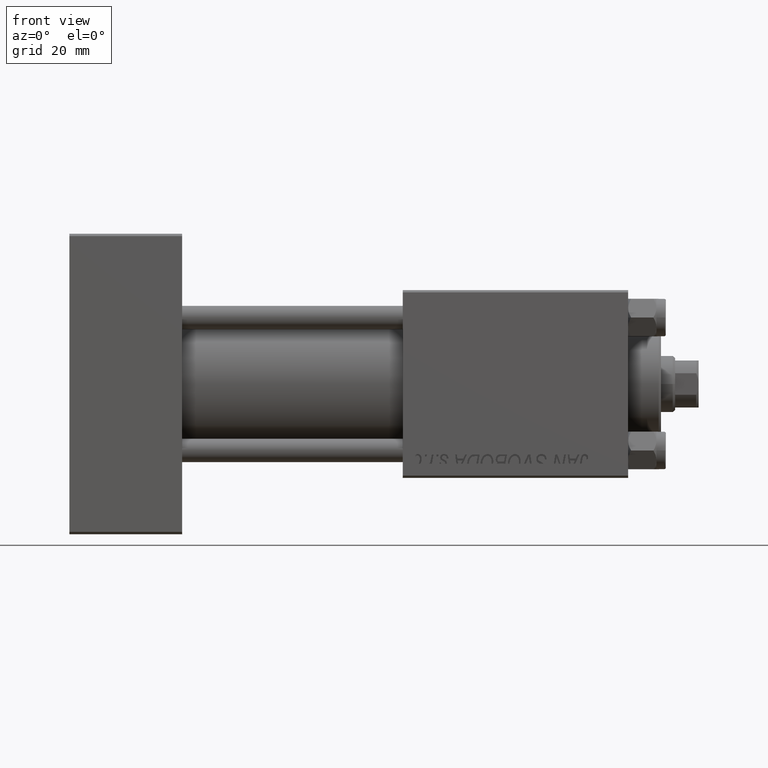
[diagram: clean part render]
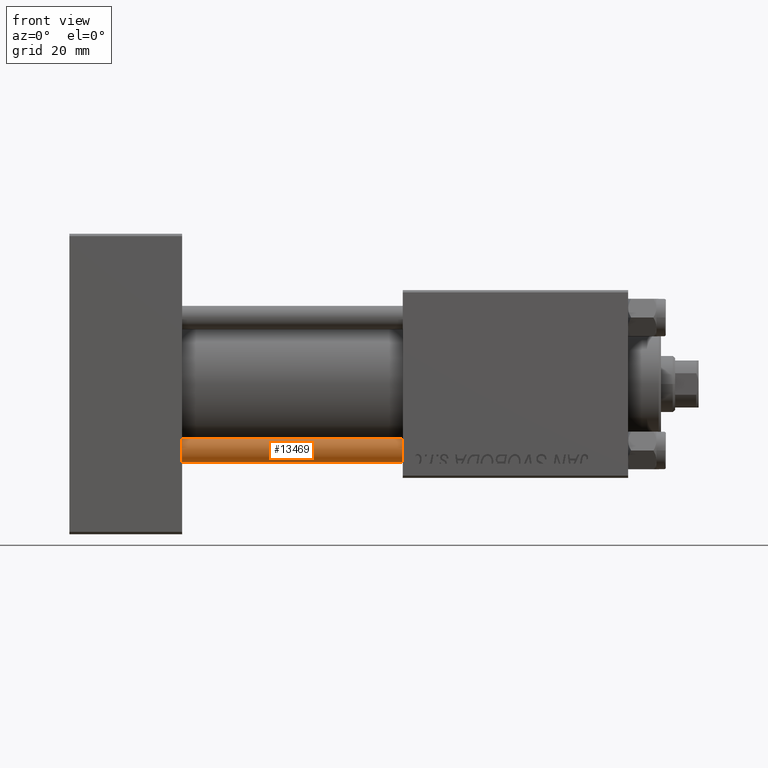
[diagram: same view with one face highlighted and labeled with its STEP entity id]
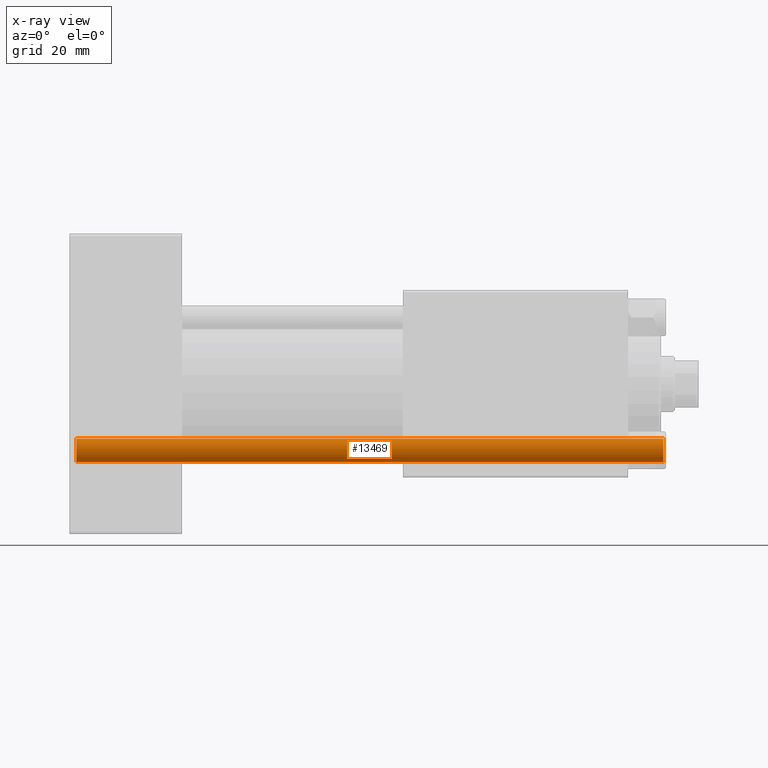
[diagram: x-ray of the same camera — body ghosted, the highlighted face saturated]
A machine part, front view. The second image highlights one B-rep face of the part: STEP entity #13469.
The next image is the same camera in x-ray: the body ghosted, the highlighted face saturated — about 0% of this face is hidden behind the body in this view.
In plain terms, the highlighted cylindrical surface (edge-blend (fillet) strip) has radius 2.5 mm, axis along (1, -0, -0).
Its self-contained STEP definition (entity closure, byte-faithful):
#584 = CARTESIAN_POINT ( 'NONE',  ( 0.000000000000000000, 0.000000000000000000, 125.5000000000000568 ) ) ;
#4180 = AXIS2_PLACEMENT_3D ( 'NONE', #48426, #19992, #20258 ) ;
#4964 = CIRCLE ( 'NONE', #51613, 2.500000000000000000 ) ;
#6126 = AXIS2_PLACEMENT_3D ( 'NONE', #45739, #38410, #18830 ) ;
#7799 = CIRCLE ( 'NONE', #6126, 2.500000000000000000 ) ;
#9642 = VERTEX_POINT ( 'NONE', #46377 ) ;
#13469 = ADVANCED_FACE ( 'NONE', ( #23928 ), #16859, .T. ) ;
#15187 = EDGE_CURVE ( 'NONE', #9642, #27916, #43011, .T. ) ;
#15872 = CARTESIAN_POINT ( 'NONE',  ( -2.500000000000000000, 0.000000000000000000, 0.5000000000000004441 ) ) ;
#16280 = CARTESIAN_POINT ( 'NONE',  ( 2.500000000000000000, 3.061616997868383141E-16, 126.0000000000000000 ) ) ;
#16552 = DIRECTION ( 'NONE',  ( 0.000000000000000000, 0.000000000000000000, -1.000000000000000000 ) ) ;
#16859 = CYLINDRICAL_SURFACE ( 'NONE', #4180, 2.500000000000000000 ) ;
#16948 = CARTESIAN_POINT ( 'NONE',  ( 2.500000000000000000, 3.061616997868383141E-16, 0.5000000000000004441 ) ) ;
#17950 = ORIENTED_EDGE ( 'NONE', *, *, #15187, .T. ) ;
#18329 = EDGE_CURVE ( 'NONE', #43347, #42278, #32471, .T. ) ;
#18715 = CARTESIAN_POINT ( 'NONE',  ( 2.500000000000000000, 3.061616997868383141E-16, 125.5000000000000568 ) ) ;
#18830 = DIRECTION ( 'NONE',  ( 1.000000000000000000, 0.000000000000000000, 0.000000000000000000 ) ) ;
#19992 = DIRECTION ( 'NONE',  ( -0.000000000000000000, -0.000000000000000000, -1.000000000000000000 ) ) ;
#20258 = DIRECTION ( 'NONE',  ( -1.000000000000000000, 0.000000000000000000, 0.000000000000000000 ) ) ;
#23928 = FACE_OUTER_BOUND ( 'NONE', #49926, .T. ) ;
#25621 = ORIENTED_EDGE ( 'NONE', *, *, #36799, .T. ) ;
#27120 = CARTESIAN_POINT ( 'NONE',  ( -2.500000000000000000, 0.000000000000000000, 126.0000000000000000 ) ) ;
#27916 = VERTEX_POINT ( 'NONE', #15872 ) ;
#32471 = LINE ( 'NONE', #16280, #43515 ) ;
#32480 = DIRECTION ( 'NONE',  ( 1.000000000000000000, 0.000000000000000000, 0.000000000000000000 ) ) ;
#34229 = ORIENTED_EDGE ( 'NONE', *, *, #50271, .T. ) ;
#36799 = EDGE_CURVE ( 'NONE', #27916, #42278, #7799, .T. ) ;
#38094 = DIRECTION ( 'NONE',  ( -0.000000000000000000, -0.000000000000000000, -1.000000000000000000 ) ) ;
#38410 = DIRECTION ( 'NONE',  ( -0.000000000000000000, -0.000000000000000000, 1.000000000000000000 ) ) ;
#42278 = VERTEX_POINT ( 'NONE', #16948 ) ;
#43011 = LINE ( 'NONE', #27120, #50899 ) ;
#43347 = VERTEX_POINT ( 'NONE', #18715 ) ;
#43515 = VECTOR ( 'NONE', #48627, 1000.000000000000000 ) ;
#45739 = CARTESIAN_POINT ( 'NONE',  ( 0.000000000000000000, 0.000000000000000000, 0.5000000000000004441 ) ) ;
#46377 = CARTESIAN_POINT ( 'NONE',  ( -2.500000000000000000, 0.000000000000000000, 125.5000000000000568 ) ) ;
#48426 = CARTESIAN_POINT ( 'NONE',  ( 0.000000000000000000, 0.000000000000000000, 126.0000000000000000 ) ) ;
#48627 = DIRECTION ( 'NONE',  ( -0.000000000000000000, -0.000000000000000000, -1.000000000000000000 ) ) ;
#49926 = EDGE_LOOP ( 'NONE', ( #50979, #34229, #17950, #25621 ) ) ;
#50271 = EDGE_CURVE ( 'NONE', #43347, #9642, #4964, .T. ) ;
#50899 = VECTOR ( 'NONE', #38094, 1000.000000000000000 ) ;
#50979 = ORIENTED_EDGE ( 'NONE', *, *, #18329, .F. ) ;
#51613 = AXIS2_PLACEMENT_3D ( 'NONE', #584, #16552, #32480 ) ;